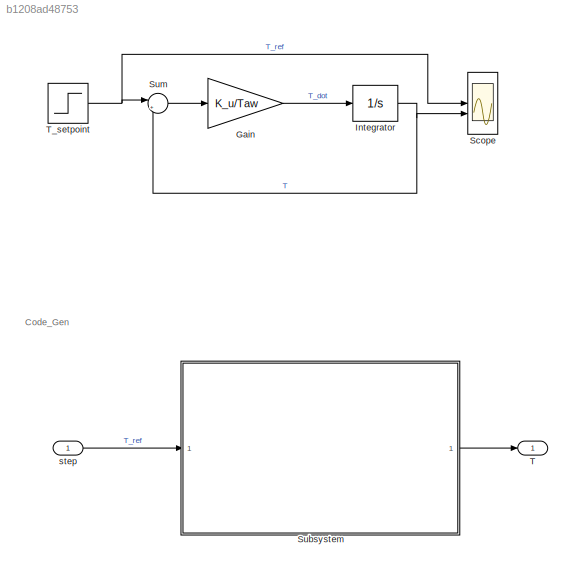
MODEL slx_b1208ad48753
KIND model
CONFIG AbsTol = auto
CONFIG EnableMultiTasking = off
CONFIG FixedStep = 1e-3
CONFIG MaxStep = auto
CONFIG MinStep = auto
CONFIG RelTol = 1e-3
CONFIG SampleTimeConstraint = Unconstrained
CONFIG SolverName = FixedStepAuto
CONFIG StartTime = 0.0
CONFIG StopTime = 10.0
BLOCK [Gain] Gain
  Gain = K_u/Taw
BLOCK [Integrator] Integrator
BLOCK [Scope] Scope
  Floating = off
  NumInputPorts = 2
  ScopeSpecificationString = Simulink.scopes.TimeScopeBlockCfg('CurrentConfiguration', extmgr.ConfigurationSet(extmgr.Configuration('Core','General UI',true),extmgr.Configuration('Core','Source UI',true),extmgr.Configuration('Sources','WiredSimulink',true),extmgr.Configuration('Visuals','Time Domain',true,'SerializedDisplays',{struct('MinYLimReal','-1.00000','MaxYLimReal','9.00000','YLabelReal','','MinYLimMag','0.00000','MaxY...<+1474ch>
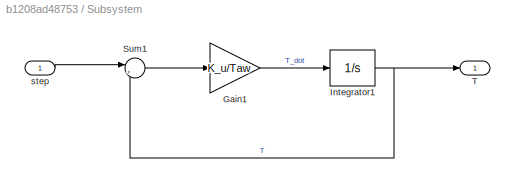
BLOCK [SubSystem] Subsystem
BLOCK [Gain] Subsystem/Gain1
  Gain = K_u/Taw
BLOCK [Integrator] Subsystem/Integrator1
BLOCK [Sum] Subsystem/Sum1
  Inputs = |+-
BLOCK [Outport] Subsystem/T
BLOCK [Inport] Subsystem/step
BLOCK [Sum] Sum
  Inputs = |+-
BLOCK [Outport] T
BLOCK [Step] T_setpoint
  After = 8
  SampleTime = 0
BLOCK [Inport] step
ANNOTATION (root): Code_Gen
LINE Gain:1 -> Integrator:1
NET Integrator:1 -> Scope:2, Sum:2
LINE Subsystem/Gain1:1 -> Subsystem/Integrator1:1
NET Subsystem/Integrator1:1 -> Subsystem/Sum1:2, Subsystem/T:1
LINE Subsystem/Sum1:1 -> Subsystem/Gain1:1
LINE Subsystem/step:1 -> Subsystem/Sum1:1
LINE Subsystem:1 -> T:1
LINE Sum:1 -> Gain:1
NET T_setpoint:1 -> Scope:1, Sum:1
LINE step:1 -> Subsystem:1
note: NET lines group one-source signal fan-out (src -> all destinations, sorted); 1:1 wires keep LINE
